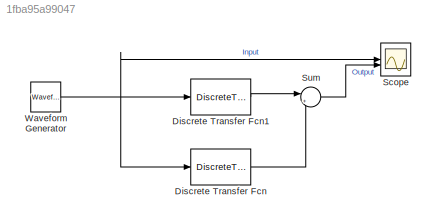
MODEL slx_1fba95a99047
KIND model
CONFIG AbsTol = auto
CONFIG EnableMultiTasking = off
CONFIG FixedStep = auto
CONFIG MaxStep = auto
CONFIG MinStep = auto
CONFIG RelTol = 1e-3
CONFIG SampleTimeConstraint = Unconstrained
CONFIG SolverName = VariableStepAuto
CONFIG StartTime = 0.0
CONFIG StopTime = 10.0
BLOCK [DiscreteTransferFcn] Discrete Transfer Fcn
  Denominator = [1]
  InputPortMap = u0
BLOCK [DiscreteTransferFcn] Discrete Transfer Fcn1
  Denominator = [1 0]
  InputPortMap = u0
  Numerator = [-1/2]
BLOCK [Scope] Scope
  Floating = off
  NumInputPorts = 2
  ScopeSpecificationString = Simulink.scopes.TimeScopeBlockCfg('CurrentConfiguration', extmgr.ConfigurationSet(extmgr.Configuration('Core','General UI',true),extmgr.Configuration('Core','Source UI',true),extmgr.Configuration('Sources','WiredSimulink',true),extmgr.Configuration('Visuals','Time Domain',true,'SerializedDisplays',{struct('MinYLimReal','-1.24997','MaxYLimReal','1.24997','YLabelReal','','MinYLimMag','0.00000','MaxY...<+1358ch>
BLOCK [Sum] Sum
  Inputs = |++
BLOCK [Reference] Waveform Generator  REF=simulink/Sources/Waveform
Generator
  SourceBlock = simulink/Sources/Waveform\nGenerator
  SourceType = WaveformGenerator
LINE Discrete Transfer Fcn1:1 -> Sum:1
LINE Discrete Transfer Fcn:1 -> Sum:2
LINE Sum:1 -> Scope:2
NET Waveform Generator:1 -> Discrete Transfer Fcn1:1, Discrete Transfer Fcn:1, Scope:1
note: NET lines group one-source signal fan-out (src -> all destinations, sorted); 1:1 wires keep LINE
